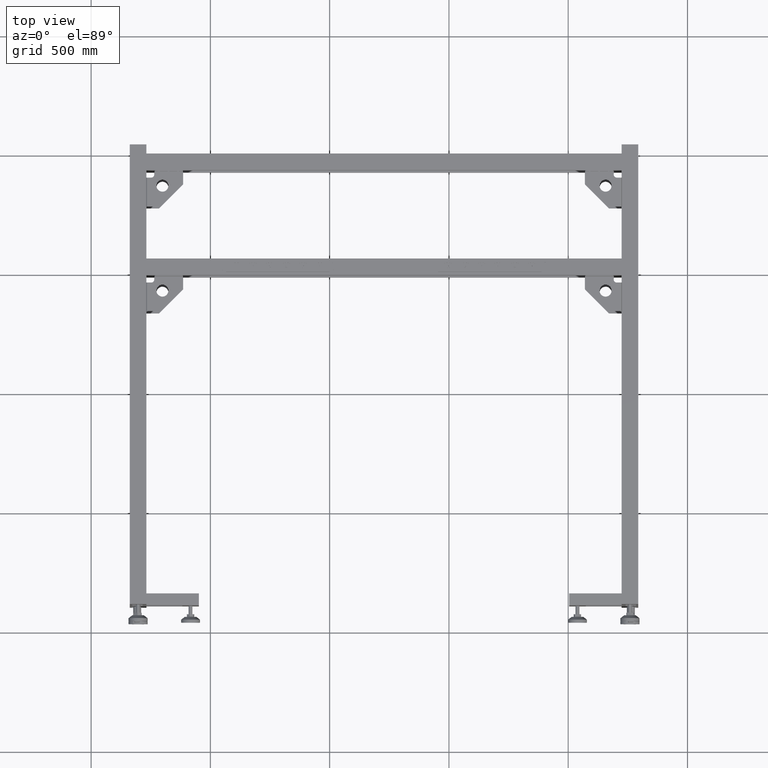
[diagram: clean part render]
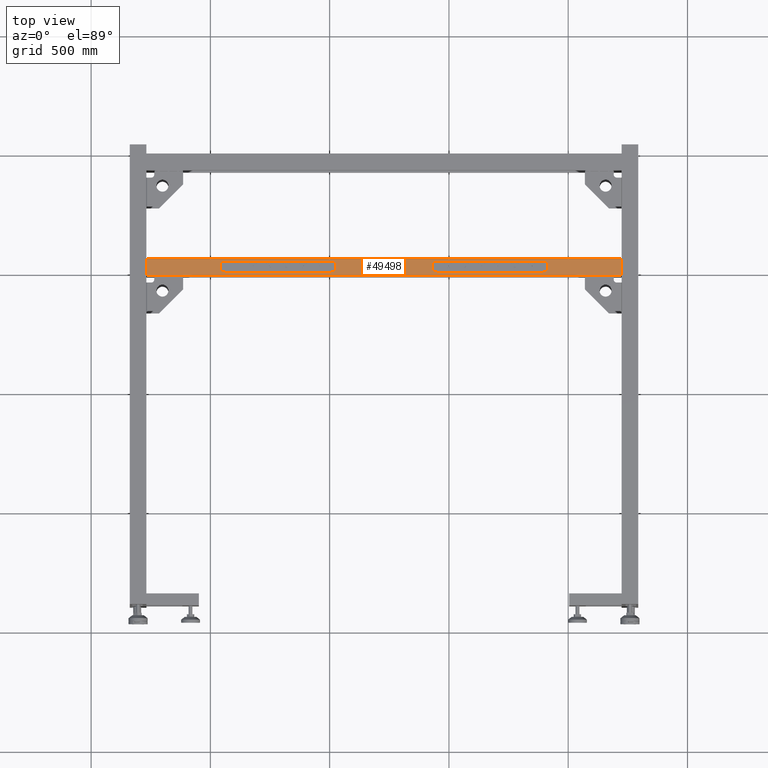
[diagram: same view with one face highlighted and labeled with its STEP entity id]
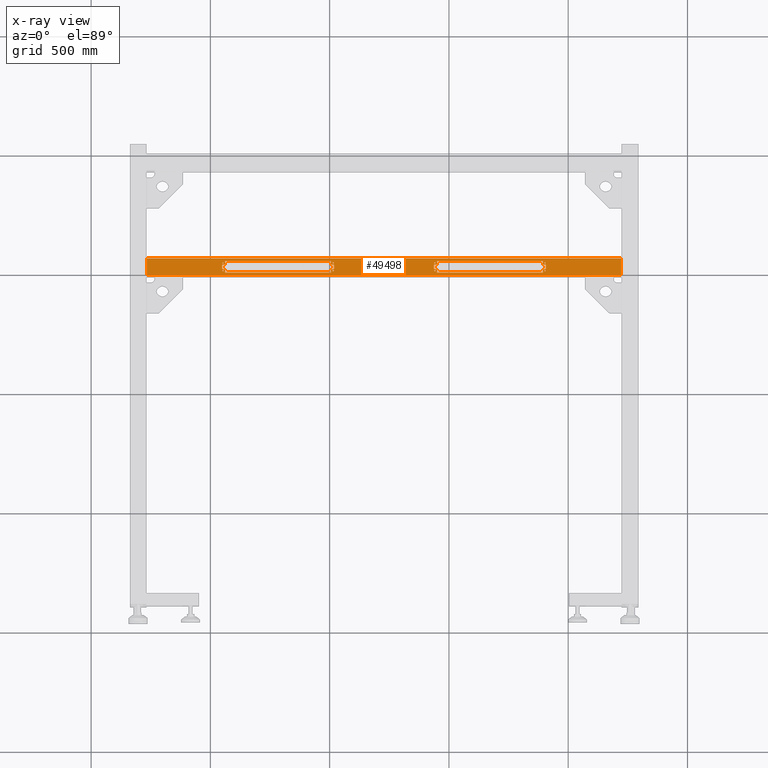
[diagram: x-ray of the same camera — body ghosted, the highlighted face saturated]
A machine part, top view. The second image highlights one B-rep face of the part: STEP entity #49498.
The next image is the same camera in x-ray: the body ghosted, the highlighted face saturated — about 0% of this face is hidden behind the body in this view.
In plain terms, the highlighted planar face has unit normal (0, 0, -1).
Its self-contained STEP definition (entity closure, byte-faithful):
#266 = VERTEX_POINT ( 'NONE', #2231 ) ;
#527 = EDGE_CURVE ( 'NONE', #13669, #47377, #28996, .T. ) ;
#904 = DIRECTION ( 'NONE',  ( 7.960835153364788038E-31, -2.999999999999999839E-15, 1.000000000000000000 ) ) ;
#936 = ORIENTED_EDGE ( 'NONE', *, *, #35112, .F. ) ;
#1329 = ORIENTED_EDGE ( 'NONE', *, *, #56713, .F. ) ;
#1352 = CARTESIAN_POINT ( 'NONE',  ( -486.1724874371860210, 531.9410804020108117, 300.0000000000000568 ) ) ;
#1540 = CARTESIAN_POINT ( 'NONE',  ( 393.8275125628159685, 531.9410804020110390, 300.0000000000000568 ) ) ;
#1552 = CARTESIAN_POINT ( 'NONE',  ( -947.1724874371860778, 505.9410804020108117, 299.9999999999999432 ) ) ;
#1558 = VERTEX_POINT ( 'NONE', #68905 ) ;
#1582 = DIRECTION ( 'NONE',  ( 0.000000000000000000, -2.999999999999999839E-15, 1.000000000000000000 ) ) ;
#2035 = EDGE_LOOP ( 'NONE', ( #28063, #31791 ) ) ;
#2231 = CARTESIAN_POINT ( 'NONE',  ( 406.8275125628160822, 526.9410804020110390, 300.0000000000000568 ) ) ;
#2242 = LINE ( 'NONE', #75510, #21862 ) ;
#2318 = CARTESIAN_POINT ( 'NONE',  ( -485.1724874371860210, 537.9410804020139949, 300.0000000000000568 ) ) ;
#2947 = ORIENTED_EDGE ( 'NONE', *, *, #44410, .F. ) ;
#3583 = VERTEX_POINT ( 'NONE', #6135 ) ;
#4714 = CARTESIAN_POINT ( 'NONE',  ( -63.17248743718406701, 531.9410804020109254, 300.0000000000000568 ) ) ;
#4722 = CARTESIAN_POINT ( 'NONE',  ( 393.8275125628159685, 546.4410804020110390, 300.0000000000000568 ) ) ;
#4749 = DIRECTION ( 'NONE',  ( 0.000000000000000000, -1.000000000000000000, 0.000000000000000000 ) ) ;
#5450 = LINE ( 'NONE', #6254, #21640 ) ;
#5465 = CARTESIAN_POINT ( 'NONE',  ( -59.17248743718401016, 508.5410804020141882, 299.9999999999999432 ) ) ;
#5870 = LINE ( 'NONE', #44710, #31961 ) ;
#5891 = VERTEX_POINT ( 'NONE', #20663 ) ;
#6135 = CARTESIAN_POINT ( 'NONE',  ( -58.17248743718405990, 531.9410804020109254, 300.0000000000000568 ) ) ;
#6254 = CARTESIAN_POINT ( 'NONE',  ( 406.8275125628160822, 531.9410804020110390, 300.0000000000000568 ) ) ;
#6269 = VERTEX_POINT ( 'NONE', #14744 ) ;
#6855 = AXIS2_PLACEMENT_3D ( 'NONE', #19943, #1582, #51506 ) ;
#7041 = ORIENTED_EDGE ( 'NONE', *, *, #58345, .T. ) ;
#7105 = DIRECTION ( 'NONE',  ( 0.000000000000000000, 1.000000000000000000, 0.000000000000000000 ) ) ;
#7136 = CIRCLE ( 'NONE', #48960, 2.600000000000046718 ) ;
#7827 = LINE ( 'NONE', #33215, #65468 ) ;
#8002 = DIRECTION ( 'NONE',  ( 0.000000000000000000, -2.999999999999999839E-15, 1.000000000000000000 ) ) ;
#8058 = CARTESIAN_POINT ( 'NONE',  ( 402.8275125628160822, 537.9410804020110390, 300.0000000000000568 ) ) ;
#8066 = ORIENTED_EDGE ( 'NONE', *, *, #56311, .T. ) ;
#8237 = AXIS2_PLACEMENT_3D ( 'NONE', #1552, #65316, #26890 ) ;
#8436 = DIRECTION ( 'NONE',  ( 0.000000000000000000, -1.000000000000000000, 0.000000000000000000 ) ) ;
#8531 = VERTEX_POINT ( 'NONE', #47474 ) ;
#8585 = ORIENTED_EDGE ( 'NONE', *, *, #11673, .F. ) ;
#8604 = CARTESIAN_POINT ( 'NONE',  ( 401.8275125628159685, 531.9410804020110390, 300.0000000000000568 ) ) ;
#8741 = ORIENTED_EDGE ( 'NONE', *, *, #31428, .T. ) ;
#8773 = EDGE_CURVE ( 'NONE', #43921, #77637, #37607, .T. ) ;
#8837 = ORIENTED_EDGE ( 'NONE', *, *, #68766, .T. ) ;
#9093 = AXIS2_PLACEMENT_3D ( 'NONE', #53300, #46744, #72522 ) ;
#9165 = CIRCLE ( 'NONE', #65355, 2.600000000000046718 ) ;
#9293 = DIRECTION ( 'NONE',  ( 2.653611717788262918E-16, -1.000000000000000000, -3.396508223080412663E-15 ) ) ;
#9388 = DIRECTION ( 'NONE',  ( 0.000000000000000000, 3.396508223080412663E-15, -1.000000000000000000 ) ) ;
#9397 = AXIS2_PLACEMENT_3D ( 'NONE', #45661, #14137, #8436 ) ;
#9704 = EDGE_CURVE ( 'NONE', #61816, #32586, #77782, .T. ) ;
#9726 = ORIENTED_EDGE ( 'NONE', *, *, #64234, .F. ) ;
#9771 = DIRECTION ( 'NONE',  ( 1.000000000000000000, 2.028486140859684007E-16, -1.875376730785736675E-31 ) ) ;
#9788 = FACE_BOUND ( 'NONE', #57471, .T. ) ;
#10097 = DIRECTION ( 'NONE',  ( -7.960835153364788038E-31, 2.999999999999999839E-15, -1.000000000000000000 ) ) ;
#10169 = DIRECTION ( 'NONE',  ( 0.000000000000000000, -1.000000000000000000, 0.000000000000000000 ) ) ;
#10178 = CARTESIAN_POINT ( 'NONE',  ( 1021.827512562814036, 556.9410804020106980, 300.0000000000001137 ) ) ;
#10220 = AXIS2_PLACEMENT_3D ( 'NONE', #64052, #8002, #14114 ) ;
#10324 = VECTOR ( 'NONE', #59338, 1000.000000000000000 ) ;
#11041 = VERTEX_POINT ( 'NONE', #14444 ) ;
#11318 = VECTOR ( 'NONE', #37242, 1000.000000000000000 ) ;
#11489 = ORIENTED_EDGE ( 'NONE', *, *, #71709, .F. ) ;
#11497 = VERTEX_POINT ( 'NONE', #49021 ) ;
#11557 = VERTEX_POINT ( 'NONE', #60883 ) ;
#11673 = EDGE_CURVE ( 'NONE', #61882, #49262, #44892, .T. ) ;
#11893 = DIRECTION ( 'NONE',  ( 0.000000000000000000, 1.000000000000000000, 0.000000000000000000 ) ) ;
#12093 = CIRCLE ( 'NONE', #6855, 2.600000000000046718 ) ;
#12261 = LINE ( 'NONE', #60975, #11318 ) ;
#12378 = CARTESIAN_POINT ( 'NONE',  ( -951.1724874371860778, 511.9410804020108117, 299.9999999999999432 ) ) ;
#12466 = DIRECTION ( 'NONE',  ( -2.653611717788262918E-16, 1.000000000000000000, 2.999999999999999839E-15 ) ) ;
#12804 = VERTEX_POINT ( 'NONE', #71159 ) ;
#13000 = CARTESIAN_POINT ( 'NONE',  ( -946.1724874371859642, 511.9410804020108117, 299.9999999999999432 ) ) ;
#13239 = CARTESIAN_POINT ( 'NONE',  ( 406.8275125628160822, 511.9410804020110390, 299.9999999999999432 ) ) ;
#13435 = VECTOR ( 'NONE', #9771, 1000.000000000000000 ) ;
#13669 = VERTEX_POINT ( 'NONE', #72491 ) ;
#13949 = CARTESIAN_POINT ( 'NONE',  ( -947.1724874371860778, 503.3410804020108458, 299.9999999999999432 ) ) ;
#14071 = ORIENTED_EDGE ( 'NONE', *, *, #69853, .F. ) ;
#14114 = DIRECTION ( 'NONE',  ( 0.000000000000000000, -1.000000000000000000, 0.000000000000000000 ) ) ;
#14137 = DIRECTION ( 'NONE',  ( -7.960835153364788038E-31, 2.999999999999999839E-15, -1.000000000000000000 ) ) ;
#14402 = CARTESIAN_POINT ( 'NONE',  ( -947.1724874371860778, 540.5410804020107207, 300.0000000000000568 ) ) ;
#14444 = CARTESIAN_POINT ( 'NONE',  ( -938.1724874371859642, 531.9410804020108117, 300.0000000000000568 ) ) ;
#14744 = CARTESIAN_POINT ( 'NONE',  ( -946.1724874371859642, 531.9410804020108117, 300.0000000000000568 ) ) ;
#15060 = CARTESIAN_POINT ( 'NONE',  ( -486.1724874371860210, 526.9410804020108117, 300.0000000000000568 ) ) ;
#15335 = CIRCLE ( 'NONE', #10220, 2.600000000000046718 ) ;
#15496 = FACE_BOUND ( 'NONE', #45992, .T. ) ;
#15704 = VERTEX_POINT ( 'NONE', #80070 ) ;
#15810 = CARTESIAN_POINT ( 'NONE',  ( -481.1724874371859642, 516.9410804020108117, 300.0000000000000000 ) ) ;
#15834 = EDGE_LOOP ( 'NONE', ( #28859, #56506 ) ) ;
#15860 = LINE ( 'NONE', #65799, #76940 ) ;
#16214 = CIRCLE ( 'NONE', #8237, 2.600000000000046718 ) ;
#16304 = PLANE ( 'NONE',  #73415 ) ;
#16449 = CARTESIAN_POINT ( 'NONE',  ( -485.1724874371860210, 505.9410804020138812, 299.9999999999999432 ) ) ;
#16486 = AXIS2_PLACEMENT_3D ( 'NONE', #15060, #64997, #22416 ) ;
#16627 = VERTEX_POINT ( 'NONE', #8604 ) ;
#16676 = DIRECTION ( 'NONE',  ( 0.000000000000000000, -2.999999999999999839E-15, 1.000000000000000000 ) ) ;
#16729 = DIRECTION ( 'NONE',  ( 0.000000000000000000, -2.999999999999999839E-15, 1.000000000000000000 ) ) ;
#16802 = EDGE_CURVE ( 'NONE', #66692, #19691, #60534, .T. ) ;
#17080 = CARTESIAN_POINT ( 'NONE',  ( -485.1724874371860210, 505.9410804020138812, 299.9999999999999432 ) ) ;
#17530 = DIRECTION ( 'NONE',  ( -2.653611717788262918E-16, 1.000000000000000000, 3.957088814332028864E-15 ) ) ;
#18006 = DIRECTION ( 'NONE',  ( 0.000000000000000000, 2.999999999999999839E-15, -1.000000000000000000 ) ) ;
#18016 = EDGE_CURVE ( 'NONE', #50449, #76430, #28729, .T. ) ;
#18072 = CARTESIAN_POINT ( 'NONE',  ( 402.8275125628160822, 535.3410804020110163, 300.0000000000000568 ) ) ;
#18129 = EDGE_CURVE ( 'NONE', #11041, #6269, #56127, .T. ) ;
#18560 = AXIS2_PLACEMENT_3D ( 'NONE', #38593, #20930, #40181 ) ;
#18576 = LINE ( 'NONE', #4714, #50812 ) ;
#18747 = VECTOR ( 'NONE', #76930, 1000.000000000000000 ) ;
#19493 = EDGE_CURVE ( 'NONE', #19691, #47377, #51635, .T. ) ;
#19537 = EDGE_CURVE ( 'NONE', #3583, #35132, #43331, .T. ) ;
#19691 = VERTEX_POINT ( 'NONE', #30657 ) ;
#19943 = CARTESIAN_POINT ( 'NONE',  ( -947.1724874371860778, 537.9410804020108117, 300.0000000000000568 ) ) ;
#20663 = CARTESIAN_POINT ( 'NONE',  ( -485.1724874371860210, 535.3410804020138585, 300.0000000000000568 ) ) ;
#20838 = ORIENTED_EDGE ( 'NONE', *, *, #55433, .T. ) ;
#20930 = DIRECTION ( 'NONE',  ( -7.960835153364788038E-31, 2.999999999999999839E-15, -1.000000000000000000 ) ) ;
#21103 = DIRECTION ( 'NONE',  ( 0.000000000000000000, -2.999999999999999839E-15, 1.000000000000000000 ) ) ;
#21232 = FACE_BOUND ( 'NONE', #2035, .T. ) ;
#21233 = EDGE_LOOP ( 'NONE', ( #67341, #2947 ) ) ;
#21298 = EDGE_CURVE ( 'NONE', #72736, #15704, #40755, .T. ) ;
#21627 = EDGE_CURVE ( 'NONE', #32586, #11041, #7827, .T. ) ;
#21640 = VECTOR ( 'NONE', #42669, 1000.000000000000000 ) ;
#21806 = CIRCLE ( 'NONE', #36261, 2.600000000000046718 ) ;
#21862 = VECTOR ( 'NONE', #75915, 1000.000000000000000 ) ;
#22063 = DIRECTION ( 'NONE',  ( 0.000000000000000000, 2.999999999999999839E-15, -1.000000000000000000 ) ) ;
#22085 = CARTESIAN_POINT ( 'NONE',  ( -58.17248743718400306, 516.9410804020109254, 300.0000000000000000 ) ) ;
#22172 = CIRCLE ( 'NONE', #67932, 5.000000000000004441 ) ;
#22416 = DIRECTION ( 'NONE',  ( 0.000000000000000000, 1.000000000000000000, 0.000000000000000000 ) ) ;
#22566 = CARTESIAN_POINT ( 'NONE',  ( -494.1724874371860210, 511.9410804020108117, 299.9999999999999432 ) ) ;
#23614 = ORIENTED_EDGE ( 'NONE', *, *, #527, .F. ) ;
#23719 = ORIENTED_EDGE ( 'NONE', *, *, #28034, .F. ) ;
#23731 = CARTESIAN_POINT ( 'NONE',  ( 393.8275125628159685, 511.9410804020110390, 299.9999999999999432 ) ) ;
#23784 = VERTEX_POINT ( 'NONE', #66427 ) ;
#23907 = CARTESIAN_POINT ( 'NONE',  ( 393.8275125628159685, 497.4410804020109822, 299.9999999999999432 ) ) ;
#24046 = CARTESIAN_POINT ( 'NONE',  ( -951.1724874371860778, 516.9410804020108117, 300.0000000000000000 ) ) ;
#24051 = EDGE_CURVE ( 'NONE', #11557, #50115, #39496, .T. ) ;
#24388 = CARTESIAN_POINT ( 'NONE',  ( -481.1724874371859642, 526.9410804020108117, 300.0000000000000568 ) ) ;
#24463 = ORIENTED_EDGE ( 'NONE', *, *, #19537, .F. ) ;
#24587 = CARTESIAN_POINT ( 'NONE',  ( -951.1724874371860778, 531.9410804020108117, 300.0000000000000568 ) ) ;
#24880 = DIRECTION ( 'NONE',  ( 0.000000000000000000, 1.000000000000000000, 0.000000000000000000 ) ) ;
#24971 = CARTESIAN_POINT ( 'NONE',  ( -1266.172487437185964, 486.9410804020108117, 299.9999999999998863 ) ) ;
#25017 = EDGE_CURVE ( 'NONE', #266, #16627, #22172, .T. ) ;
#25153 = ORIENTED_EDGE ( 'NONE', *, *, #59700, .F. ) ;
#25236 = CIRCLE ( 'NONE', #59169, 2.600000000000046718 ) ;
#25254 = CARTESIAN_POINT ( 'NONE',  ( 1021.827512562814036, 486.9410804020108117, 299.9999999999998863 ) ) ;
#25367 = CIRCLE ( 'NONE', #58018, 5.000000000000004441 ) ;
#26184 = VERTEX_POINT ( 'NONE', #41907 ) ;
#26321 = VECTOR ( 'NONE', #17530, 1000.000000000000000 ) ;
#26377 = CARTESIAN_POINT ( 'NONE',  ( -58.17248743718400306, 511.9410804020109254, 299.9999999999999432 ) ) ;
#26522 = ORIENTED_EDGE ( 'NONE', *, *, #21627, .F. ) ;
#26890 = DIRECTION ( 'NONE',  ( 0.000000000000000000, -1.000000000000000000, 0.000000000000000000 ) ) ;
#26947 = EDGE_CURVE ( 'NONE', #27664, #28734, #67077, .T. ) ;
#27042 = CARTESIAN_POINT ( 'NONE',  ( -58.17248743718405990, 526.9410804020109254, 300.0000000000000568 ) ) ;
#27265 = DIRECTION ( 'NONE',  ( -7.960835153364788038E-31, 2.999999999999999839E-15, -1.000000000000000000 ) ) ;
#27664 = VERTEX_POINT ( 'NONE', #31633 ) ;
#27834 = DIRECTION ( 'NONE',  ( 7.960835153364788038E-31, -2.999999999999999839E-15, 1.000000000000000000 ) ) ;
#27963 = DIRECTION ( 'NONE',  ( 0.000000000000000000, -2.999999999999999839E-15, 1.000000000000000000 ) ) ;
#28034 = EDGE_CURVE ( 'NONE', #37994, #45620, #56895, .T. ) ;
#28063 = ORIENTED_EDGE ( 'NONE', *, *, #40860, .F. ) ;
#28342 = EDGE_CURVE ( 'NONE', #40370, #6269, #25367, .T. ) ;
#28574 = CARTESIAN_POINT ( 'NONE',  ( -951.1724874371860778, 531.9410804020108117, 300.0000000000000568 ) ) ;
#28586 = ORIENTED_EDGE ( 'NONE', *, *, #38141, .F. ) ;
#28691 = VERTEX_POINT ( 'NONE', #78415 ) ;
#28729 = CIRCLE ( 'NONE', #9093, 2.600000000000046718 ) ;
#28734 = VERTEX_POINT ( 'NONE', #53860 ) ;
#28859 = ORIENTED_EDGE ( 'NONE', *, *, #38121, .T. ) ;
#28996 = CIRCLE ( 'NONE', #51200, 5.000000000000004441 ) ;
#29015 = EDGE_CURVE ( 'NONE', #66315, #66692, #64412, .T. ) ;
#29025 = FACE_BOUND ( 'NONE', #30948, .T. ) ;
#29352 = ORIENTED_EDGE ( 'NONE', *, *, #19493, .T. ) ;
#30657 = CARTESIAN_POINT ( 'NONE',  ( -50.17248743718399595, 511.9410804020109254, 299.9999999999999432 ) ) ;
#30898 = EDGE_CURVE ( 'NONE', #69935, #43921, #76130, .T. ) ;
#30948 = EDGE_LOOP ( 'NONE', ( #74608, #38637 ) ) ;
#31264 = CARTESIAN_POINT ( 'NONE',  ( 402.8275125628160822, 503.3410804020110731, 299.9999999999999432 ) ) ;
#31428 = EDGE_CURVE ( 'NONE', #8531, #36891, #5870, .T. ) ;
#31536 = VERTEX_POINT ( 'NONE', #1352 ) ;
#31633 = CARTESIAN_POINT ( 'NONE',  ( 721.8275125628159685, 556.9410804020110390, 300.0000000000001137 ) ) ;
#31791 = ORIENTED_EDGE ( 'NONE', *, *, #67462, .F. ) ;
#31846 = CARTESIAN_POINT ( 'NONE',  ( -946.1724874371859642, 526.9410804020108117, 300.0000000000000568 ) ) ;
#31917 = EDGE_CURVE ( 'NONE', #57789, #47853, #67075, .T. ) ;
#31961 = VECTOR ( 'NONE', #38178, 1000.000000000000000 ) ;
#32105 = LINE ( 'NONE', #13239, #38456 ) ;
#32241 = CARTESIAN_POINT ( 'NONE',  ( -485.1724874371860210, 508.5410804020140745, 299.9999999999999432 ) ) ;
#32298 = ORIENTED_EDGE ( 'NONE', *, *, #79654, .T. ) ;
#32540 = DIRECTION ( 'NONE',  ( -1.000000000000000000, -2.028486140859684007E-16, 1.875376730785736675E-31 ) ) ;
#32586 = VERTEX_POINT ( 'NONE', #73802 ) ;
#33215 = CARTESIAN_POINT ( 'NONE',  ( -938.1724874371859642, 546.4410804020108117, 300.0000000000000568 ) ) ;
#33557 = EDGE_CURVE ( 'NONE', #12804, #60086, #12093, .T. ) ;
#33591 = DIRECTION ( 'NONE',  ( 0.000000000000000000, 1.000000000000000000, 0.000000000000000000 ) ) ;
#33604 = DIRECTION ( 'NONE',  ( -1.000000000000000000, -6.251255769285789110E-17, -1.875376730785736675E-31 ) ) ;
#34016 = EDGE_CURVE ( 'NONE', #50115, #11557, #25236, .T. ) ;
#34762 = CIRCLE ( 'NONE', #66098, 2.600000000000046718 ) ;
#34763 = FACE_BOUND ( 'NONE', #21233, .T. ) ;
#35070 = LINE ( 'NONE', #65347, #64812 ) ;
#35112 = EDGE_CURVE ( 'NONE', #76430, #50449, #16214, .T. ) ;
#35132 = VERTEX_POINT ( 'NONE', #57991 ) ;
#35134 = LINE ( 'NONE', #71556, #13435 ) ;
#35903 = LINE ( 'NONE', #66561, #67813 ) ;
#36053 = CIRCLE ( 'NONE', #71296, 5.000000000000004441 ) ;
#36261 = AXIS2_PLACEMENT_3D ( 'NONE', #59995, #78016, #4749 ) ;
#36490 = VERTEX_POINT ( 'NONE', #77330 ) ;
#36891 = VERTEX_POINT ( 'NONE', #42298 ) ;
#37242 = DIRECTION ( 'NONE',  ( 0.000000000000000000, -1.000000000000000000, -3.396508223080412663E-15 ) ) ;
#37607 = LINE ( 'NONE', #69506, #48105 ) ;
#37698 = EDGE_CURVE ( 'NONE', #37994, #73474, #36053, .T. ) ;
#37779 = VECTOR ( 'NONE', #33604, 1000.000000000000000 ) ;
#37814 = DIRECTION ( 'NONE',  ( -1.000000000000000000, 1.414618770556693465E-14, 4.323464663203728341E-29 ) ) ;
#37994 = VERTEX_POINT ( 'NONE', #15810 ) ;
#38121 = EDGE_CURVE ( 'NONE', #15704, #72736, #34762, .T. ) ;
#38141 = EDGE_CURVE ( 'NONE', #27664, #61882, #35070, .T. ) ;
#38178 = DIRECTION ( 'NONE',  ( -2.653611717788262918E-16, 1.000000000000000000, 3.957088814332035175E-15 ) ) ;
#38289 = ORIENTED_EDGE ( 'NONE', *, *, #54278, .T. ) ;
#38456 = VECTOR ( 'NONE', #37814, 1000.000000000000000 ) ;
#38593 = CARTESIAN_POINT ( 'NONE',  ( -59.17248743718405990, 537.9410804020139949, 300.0000000000000568 ) ) ;
#38637 = ORIENTED_EDGE ( 'NONE', *, *, #42678, .T. ) ;
#38638 = DIRECTION ( 'NONE',  ( 0.000000000000000000, -1.000000000000000000, 0.000000000000000000 ) ) ;
#39009 = VERTEX_POINT ( 'NONE', #31264 ) ;
#39024 = CARTESIAN_POINT ( 'NONE',  ( 402.8275125628160822, 537.9410804020110390, 300.0000000000000568 ) ) ;
#39317 = CARTESIAN_POINT ( 'NONE',  ( -50.17248743718399595, 511.9410804020109254, 299.9999999999999432 ) ) ;
#39423 = VECTOR ( 'NONE', #64276, 1000.000000000000000 ) ;
#39496 = CIRCLE ( 'NONE', #18560, 2.600000000000046718 ) ;
#39551 = DIRECTION ( 'NONE',  ( 0.000000000000000000, -1.000000000000000000, 0.000000000000000000 ) ) ;
#39840 = DIRECTION ( 'NONE',  ( -7.960835153364788038E-31, 2.999999999999999839E-15, -1.000000000000000000 ) ) ;
#39966 = DIRECTION ( 'NONE',  ( 0.000000000000000000, -1.000000000000000000, 0.000000000000000000 ) ) ;
#40181 = DIRECTION ( 'NONE',  ( 0.000000000000000000, -1.000000000000000000, 0.000000000000000000 ) ) ;
#40348 = CARTESIAN_POINT ( 'NONE',  ( -494.1724874371860210, 531.9410804020108117, 300.0000000000000568 ) ) ;
#40370 = VERTEX_POINT ( 'NONE', #48364 ) ;
#40755 = CIRCLE ( 'NONE', #9397, 2.600000000000046718 ) ;
#40860 = EDGE_CURVE ( 'NONE', #5891, #1558, #49343, .T. ) ;
#40874 = ORIENTED_EDGE ( 'NONE', *, *, #30898, .F. ) ;
#40902 = DIRECTION ( 'NONE',  ( 0.000000000000000000, 1.000000000000000000, 0.000000000000000000 ) ) ;
#41108 = ORIENTED_EDGE ( 'NONE', *, *, #60102, .F. ) ;
#41227 = AXIS2_PLACEMENT_3D ( 'NONE', #39024, #39840, #38638 ) ;
#41616 = AXIS2_PLACEMENT_3D ( 'NONE', #80979, #57205, #24880 ) ;
#41720 = DIRECTION ( 'NONE',  ( 0.000000000000000000, -1.000000000000000000, 0.000000000000000000 ) ) ;
#41904 = DIRECTION ( 'NONE',  ( 0.000000000000000000, -1.000000000000000000, 0.000000000000000000 ) ) ;
#41907 = CARTESIAN_POINT ( 'NONE',  ( 406.8275125628160822, 516.9410804020110390, 300.0000000000000000 ) ) ;
#42134 = EDGE_LOOP ( 'NONE', ( #59993, #26522, #58802, #79826, #1329, #8066, #23719, #63363, #69006, #41108, #60503, #40874, #14071, #62080, #71306, #53580 ) ) ;
#42215 = DIRECTION ( 'NONE',  ( -1.000000000000000000, -0.000000000000000000, 0.000000000000000000 ) ) ;
#42298 = CARTESIAN_POINT ( 'NONE',  ( -50.17248743718405279, 546.4410804020109254, 300.0000000000000568 ) ) ;
#42669 = DIRECTION ( 'NONE',  ( 1.000000000000000000, 2.653611717788262918E-16, 0.000000000000000000 ) ) ;
#42678 = EDGE_CURVE ( 'NONE', #73638, #39009, #60218, .T. ) ;
#42758 = EDGE_LOOP ( 'NONE', ( #70031, #8585, #28586, #64389 ) ) ;
#42931 = CARTESIAN_POINT ( 'NONE',  ( -494.1724874371860210, 546.4410804020108117, 300.0000000000000568 ) ) ;
#43331 = CIRCLE ( 'NONE', #76061, 5.000000000000004441 ) ;
#43474 = LINE ( 'NONE', #12378, #69619 ) ;
#43487 = ORIENTED_EDGE ( 'NONE', *, *, #46893, .T. ) ;
#43632 = VECTOR ( 'NONE', #56487, 1000.000000000000000 ) ;
#43686 = DIRECTION ( 'NONE',  ( 0.000000000000000000, 2.999999999999999839E-15, -1.000000000000000000 ) ) ;
#43921 = VERTEX_POINT ( 'NONE', #75642 ) ;
#44410 = EDGE_CURVE ( 'NONE', #60086, #12804, #15335, .T. ) ;
#44710 = CARTESIAN_POINT ( 'NONE',  ( -50.17248743718405279, 546.4410804020109254, 300.0000000000000568 ) ) ;
#44892 = LINE ( 'NONE', #25254, #61090 ) ;
#45440 = EDGE_CURVE ( 'NONE', #23784, #73474, #35903, .T. ) ;
#45620 = VERTEX_POINT ( 'NONE', #24388 ) ;
#45661 = CARTESIAN_POINT ( 'NONE',  ( -59.17248743718401016, 505.9410804020139949, 299.9999999999999432 ) ) ;
#45992 = EDGE_LOOP ( 'NONE', ( #9726, #11489 ) ) ;
#46623 = FACE_BOUND ( 'NONE', #53389, .T. ) ;
#46744 = DIRECTION ( 'NONE',  ( 0.000000000000000000, -2.999999999999999839E-15, 1.000000000000000000 ) ) ;
#46893 = EDGE_CURVE ( 'NONE', #76827, #28691, #9165, .T. ) ;
#47034 = FACE_BOUND ( 'NONE', #56038, .T. ) ;
#47069 = CARTESIAN_POINT ( 'NONE',  ( -485.1724874371860210, 537.9410804020139949, 300.0000000000000568 ) ) ;
#47377 = VERTEX_POINT ( 'NONE', #26377 ) ;
#47474 = CARTESIAN_POINT ( 'NONE',  ( -50.17248743718405279, 531.9410804020109254, 300.0000000000000568 ) ) ;
#47649 = ORIENTED_EDGE ( 'NONE', *, *, #53018, .T. ) ;
#47853 = VERTEX_POINT ( 'NONE', #24046 ) ;
#48105 = VECTOR ( 'NONE', #57229, 1000.000000000000000 ) ;
#48241 = CARTESIAN_POINT ( 'NONE',  ( -486.1724874371860210, 516.9410804020108117, 300.0000000000000000 ) ) ;
#48364 = CARTESIAN_POINT ( 'NONE',  ( -951.1724874371860778, 526.9410804020108117, 300.0000000000000568 ) ) ;
#48722 = DIRECTION ( 'NONE',  ( 1.175042694376306775E-14, -1.000000000000000000, -3.957088814332020186E-15 ) ) ;
#48867 = CARTESIAN_POINT ( 'NONE',  ( 402.8275125628160822, 505.9410804020110390, 299.9999999999999432 ) ) ;
#48960 = AXIS2_PLACEMENT_3D ( 'NONE', #17080, #16676, #10169 ) ;
#48964 = CARTESIAN_POINT ( 'NONE',  ( -486.1724874371860210, 511.9410804020108117, 299.9999999999999432 ) ) ;
#49021 = CARTESIAN_POINT ( 'NONE',  ( 401.8275125628159685, 511.9410804020110390, 299.9999999999999432 ) ) ;
#49262 = VERTEX_POINT ( 'NONE', #24971 ) ;
#49343 = CIRCLE ( 'NONE', #62430, 2.600000000000046718 ) ;
#49498 = ADVANCED_FACE ( 'NONE', ( #77736, #9788, #47034, #46623, #77327, #29025, #66225, #34763, #21232, #15496, #65434 ), #16304, .F. ) ;
#49665 = DIRECTION ( 'NONE',  ( 7.960835153364788038E-31, -2.999999999999999839E-15, 1.000000000000000000 ) ) ;
#50115 = VERTEX_POINT ( 'NONE', #55245 ) ;
#50449 = VERTEX_POINT ( 'NONE', #13949 ) ;
#50812 = VECTOR ( 'NONE', #12466, 1000.000000000000000 ) ;
#50814 = DIRECTION ( 'NONE',  ( 0.000000000000000000, 1.000000000000000000, 0.000000000000000000 ) ) ;
#50884 = LINE ( 'NONE', #22566, #61316 ) ;
#51089 = AXIS2_PLACEMENT_3D ( 'NONE', #48867, #67264, #54194 ) ;
#51200 = AXIS2_PLACEMENT_3D ( 'NONE', #22085, #27834, #33591 ) ;
#51484 = VERTEX_POINT ( 'NONE', #4722 ) ;
#51506 = DIRECTION ( 'NONE',  ( 0.000000000000000000, -1.000000000000000000, 0.000000000000000000 ) ) ;
#51635 = LINE ( 'NONE', #39317, #39423 ) ;
#51639 = DIRECTION ( 'NONE',  ( 3.828355257328120833E-15, -1.000000000000000000, -3.957088814332029653E-15 ) ) ;
#51824 = CIRCLE ( 'NONE', #16486, 5.000000000000004441 ) ;
#52687 = DIRECTION ( 'NONE',  ( 0.000000000000000000, -1.000000000000000000, 0.000000000000000000 ) ) ;
#53008 = DIRECTION ( 'NONE',  ( -7.960835153364788038E-31, 2.999999999999999839E-15, -1.000000000000000000 ) ) ;
#53018 = EDGE_CURVE ( 'NONE', #70804, #16627, #5450, .T. ) ;
#53223 = CARTESIAN_POINT ( 'NONE',  ( -938.1724874371859642, 546.4410804020108117, 300.0000000000000568 ) ) ;
#53300 = CARTESIAN_POINT ( 'NONE',  ( -947.1724874371860778, 505.9410804020108117, 299.9999999999999432 ) ) ;
#53389 = EDGE_LOOP ( 'NONE', ( #77608, #80034 ) ) ;
#53580 = ORIENTED_EDGE ( 'NONE', *, *, #28342, .T. ) ;
#53860 = CARTESIAN_POINT ( 'NONE',  ( -1266.172487437185964, 556.9410804020106980, 300.0000000000001137 ) ) ;
#53981 = DIRECTION ( 'NONE',  ( 0.000000000000000000, -1.000000000000000000, -3.396508223080412663E-15 ) ) ;
#54001 = CARTESIAN_POINT ( 'NONE',  ( -50.17248743718399595, 511.9410804020109254, 299.9999999999999432 ) ) ;
#54194 = DIRECTION ( 'NONE',  ( 0.000000000000000000, -1.000000000000000000, 0.000000000000000000 ) ) ;
#54215 = VECTOR ( 'NONE', #32540, 1000.000000000000000 ) ;
#54278 = EDGE_CURVE ( 'NONE', #11497, #36490, #32105, .T. ) ;
#54339 = CARTESIAN_POINT ( 'NONE',  ( -947.1724874371860778, 508.5410804020107207, 299.9999999999999432 ) ) ;
#54738 = ORIENTED_EDGE ( 'NONE', *, *, #80832, .T. ) ;
#54862 = LINE ( 'NONE', #23731, #78483 ) ;
#54963 = ORIENTED_EDGE ( 'NONE', *, *, #29015, .T. ) ;
#55245 = CARTESIAN_POINT ( 'NONE',  ( -59.17248743718405990, 535.3410804020139722, 300.0000000000000568 ) ) ;
#55287 = AXIS2_PLACEMENT_3D ( 'NONE', #68764, #18006, #11893 ) ;
#55433 = EDGE_CURVE ( 'NONE', #28691, #76827, #76529, .T. ) ;
#55779 = VECTOR ( 'NONE', #59164, 1000.000000000000000 ) ;
#56038 = EDGE_LOOP ( 'NONE', ( #43487, #20838 ) ) ;
#56041 = EDGE_CURVE ( 'NONE', #28734, #49262, #12261, .T. ) ;
#56073 = CARTESIAN_POINT ( 'NONE',  ( -481.1724874371859642, 531.9410804020108117, 300.0000000000000568 ) ) ;
#56127 = LINE ( 'NONE', #24587, #70474 ) ;
#56311 = EDGE_CURVE ( 'NONE', #31536, #45620, #51824, .T. ) ;
#56487 = DIRECTION ( 'NONE',  ( 0.000000000000000000, 1.000000000000000000, 2.999999999999999839E-15 ) ) ;
#56506 = ORIENTED_EDGE ( 'NONE', *, *, #21298, .T. ) ;
#56713 = EDGE_CURVE ( 'NONE', #31536, #58456, #77187, .T. ) ;
#56895 = LINE ( 'NONE', #56073, #43632 ) ;
#57205 = DIRECTION ( 'NONE',  ( 7.960835153364788038E-31, -2.999999999999999839E-15, 1.000000000000000000 ) ) ;
#57229 = DIRECTION ( 'NONE',  ( 1.000000000000000000, 6.251255769285789110E-17, 1.875376730785736675E-31 ) ) ;
#57471 = EDGE_LOOP ( 'NONE', ( #47649, #79241, #71741, #25153, #38289, #32298, #54963, #60159, #29352, #23614, #59410, #24463, #7041, #8741, #8837, #54738 ) ) ;
#57770 = CARTESIAN_POINT ( 'NONE',  ( -938.1724874371859642, 511.9410804020108117, 299.9999999999999432 ) ) ;
#57789 = VERTEX_POINT ( 'NONE', #13000 ) ;
#57948 = CIRCLE ( 'NONE', #59224, 2.600000000000046718 ) ;
#57971 = DIRECTION ( 'NONE',  ( -1.000000000000000000, -0.000000000000000000, 0.000000000000000000 ) ) ;
#57991 = CARTESIAN_POINT ( 'NONE',  ( -63.17248743718406701, 526.9410804020109254, 300.0000000000000568 ) ) ;
#58018 = AXIS2_PLACEMENT_3D ( 'NONE', #31846, #43686, #73977 ) ;
#58057 = EDGE_CURVE ( 'NONE', #39009, #73638, #21806, .T. ) ;
#58345 = EDGE_CURVE ( 'NONE', #3583, #8531, #2242, .T. ) ;
#58456 = VERTEX_POINT ( 'NONE', #71366 ) ;
#58802 = ORIENTED_EDGE ( 'NONE', *, *, #9704, .F. ) ;
#59164 = DIRECTION ( 'NONE',  ( -1.000000000000000000, -0.000000000000000000, 0.000000000000000000 ) ) ;
#59169 = AXIS2_PLACEMENT_3D ( 'NONE', #65244, #53008, #41904 ) ;
#59224 = AXIS2_PLACEMENT_3D ( 'NONE', #16449, #27963, #60251 ) ;
#59264 = DIRECTION ( 'NONE',  ( -8.061311512909844162E-15, -1.000000000000000000, -2.999999999999999839E-15 ) ) ;
#59338 = DIRECTION ( 'NONE',  ( -1.000000000000000000, -0.000000000000000000, 0.000000000000000000 ) ) ;
#59410 = ORIENTED_EDGE ( 'NONE', *, *, #77813, .T. ) ;
#59700 = EDGE_CURVE ( 'NONE', #11497, #26184, #76918, .T. ) ;
#59993 = ORIENTED_EDGE ( 'NONE', *, *, #18129, .F. ) ;
#59995 = CARTESIAN_POINT ( 'NONE',  ( 402.8275125628160822, 505.9410804020110390, 299.9999999999999432 ) ) ;
#60086 = VERTEX_POINT ( 'NONE', #14402 ) ;
#60102 = EDGE_CURVE ( 'NONE', #77637, #23784, #50884, .T. ) ;
#60159 = ORIENTED_EDGE ( 'NONE', *, *, #16802, .T. ) ;
#60218 = CIRCLE ( 'NONE', #51089, 2.600000000000046718 ) ;
#60251 = DIRECTION ( 'NONE',  ( 0.000000000000000000, -1.000000000000000000, 0.000000000000000000 ) ) ;
#60503 = ORIENTED_EDGE ( 'NONE', *, *, #8773, .F. ) ;
#60534 = LINE ( 'NONE', #54001, #26321 ) ;
#60883 = CARTESIAN_POINT ( 'NONE',  ( -59.17248743718405990, 540.5410804020142450, 300.0000000000000568 ) ) ;
#60975 = CARTESIAN_POINT ( 'NONE',  ( -1266.172487437185964, 556.9410804020106980, 300.0000000000001137 ) ) ;
#61090 = VECTOR ( 'NONE', #57971, 1000.000000000000000 ) ;
#61316 = VECTOR ( 'NONE', #66749, 1000.000000000000000 ) ;
#61816 = VERTEX_POINT ( 'NONE', #42931 ) ;
#61882 = VERTEX_POINT ( 'NONE', #80192 ) ;
#62080 = ORIENTED_EDGE ( 'NONE', *, *, #31917, .T. ) ;
#62430 = AXIS2_PLACEMENT_3D ( 'NONE', #47069, #16729, #41720 ) ;
#63017 = VECTOR ( 'NONE', #72967, 1000.000000000000000 ) ;
#63363 = ORIENTED_EDGE ( 'NONE', *, *, #37698, .T. ) ;
#63904 = DIRECTION ( 'NONE',  ( 1.000000000000000000, 1.441154887734576138E-14, 4.323464663203728341E-29 ) ) ;
#63976 = CARTESIAN_POINT ( 'NONE',  ( -485.1724874371860210, 503.3410804020139722, 299.9999999999999432 ) ) ;
#63987 = CARTESIAN_POINT ( 'NONE',  ( -50.17248743718399595, 497.4410804020108685, 299.9999999999999432 ) ) ;
#64052 = CARTESIAN_POINT ( 'NONE',  ( -947.1724874371860778, 537.9410804020108117, 300.0000000000000568 ) ) ;
#64195 = AXIS2_PLACEMENT_3D ( 'NONE', #2318, #21103, #39551 ) ;
#64222 = VECTOR ( 'NONE', #66515, 1000.000000000000000 ) ;
#64234 = EDGE_CURVE ( 'NONE', #69297, #68971, #57948, .T. ) ;
#64276 = DIRECTION ( 'NONE',  ( -1.000000000000000000, 2.683998977524987481E-16, 1.601283208593974939E-30 ) ) ;
#64389 = ORIENTED_EDGE ( 'NONE', *, *, #26947, .T. ) ;
#64412 = LINE ( 'NONE', #69756, #54215 ) ;
#64812 = VECTOR ( 'NONE', #9293, 1000.000000000000000 ) ;
#64974 = EDGE_CURVE ( 'NONE', #266, #26184, #15860, .T. ) ;
#64997 = DIRECTION ( 'NONE',  ( 0.000000000000000000, 2.999999999999999839E-15, -1.000000000000000000 ) ) ;
#65055 = EDGE_CURVE ( 'NONE', #40370, #47853, #71144, .T. ) ;
#65244 = CARTESIAN_POINT ( 'NONE',  ( -59.17248743718405990, 537.9410804020139949, 300.0000000000000568 ) ) ;
#65316 = DIRECTION ( 'NONE',  ( 0.000000000000000000, -2.999999999999999839E-15, 1.000000000000000000 ) ) ;
#65347 = CARTESIAN_POINT ( 'NONE',  ( 721.8275125628159685, 556.9410804020110390, 300.0000000000001137 ) ) ;
#65355 = AXIS2_PLACEMENT_3D ( 'NONE', #8058, #27265, #39966 ) ;
#65434 = FACE_BOUND ( 'NONE', #71783, .T. ) ;
#65468 = VECTOR ( 'NONE', #51639, 1000.000000000000000 ) ;
#65799 = CARTESIAN_POINT ( 'NONE',  ( 406.8275125628160822, 531.9410804020110390, 300.0000000000000568 ) ) ;
#66098 = AXIS2_PLACEMENT_3D ( 'NONE', #66145, #10097, #52687 ) ;
#66145 = CARTESIAN_POINT ( 'NONE',  ( -59.17248743718401016, 505.9410804020139949, 299.9999999999999432 ) ) ;
#66225 = FACE_BOUND ( 'NONE', #42134, .T. ) ;
#66315 = VERTEX_POINT ( 'NONE', #23907 ) ;
#66427 = CARTESIAN_POINT ( 'NONE',  ( -494.1724874371860210, 511.9410804020108117, 299.9999999999999432 ) ) ;
#66515 = DIRECTION ( 'NONE',  ( 0.000000000000000000, 1.000000000000000000, 3.957088814332035175E-15 ) ) ;
#66561 = CARTESIAN_POINT ( 'NONE',  ( -494.1724874371860210, 511.9410804020108117, 299.9999999999999432 ) ) ;
#66692 = VERTEX_POINT ( 'NONE', #63987 ) ;
#66749 = DIRECTION ( 'NONE',  ( 0.000000000000000000, 1.000000000000000000, 3.957088814332028864E-15 ) ) ;
#67075 = CIRCLE ( 'NONE', #55287, 5.000000000000004441 ) ;
#67077 = LINE ( 'NONE', #78986, #10324 ) ;
#67264 = DIRECTION ( 'NONE',  ( -7.960835153364788038E-31, 2.999999999999999839E-15, -1.000000000000000000 ) ) ;
#67341 = ORIENTED_EDGE ( 'NONE', *, *, #33557, .F. ) ;
#67462 = EDGE_CURVE ( 'NONE', #1558, #5891, #77290, .T. ) ;
#67813 = VECTOR ( 'NONE', #72312, 1000.000000000000000 ) ;
#67932 = AXIS2_PLACEMENT_3D ( 'NONE', #74205, #49665, #7105 ) ;
#68764 = CARTESIAN_POINT ( 'NONE',  ( -946.1724874371859642, 516.9410804020108117, 300.0000000000000000 ) ) ;
#68766 = EDGE_CURVE ( 'NONE', #36891, #51484, #35134, .T. ) ;
#68905 = CARTESIAN_POINT ( 'NONE',  ( -485.1724874371860210, 540.5410804020141313, 300.0000000000000568 ) ) ;
#68971 = VERTEX_POINT ( 'NONE', #32241 ) ;
#69006 = ORIENTED_EDGE ( 'NONE', *, *, #45440, .F. ) ;
#69297 = VERTEX_POINT ( 'NONE', #63976 ) ;
#69506 = CARTESIAN_POINT ( 'NONE',  ( -938.1724874371859642, 497.4410804020108117, 299.9999999999999432 ) ) ;
#69619 = VECTOR ( 'NONE', #63904, 1000.000000000000000 ) ;
#69756 = CARTESIAN_POINT ( 'NONE',  ( 393.8275125628159685, 497.4410804020109822, 299.9999999999999432 ) ) ;
#69853 = EDGE_CURVE ( 'NONE', #57789, #69935, #43474, .T. ) ;
#69935 = VERTEX_POINT ( 'NONE', #57770 ) ;
#69984 = CARTESIAN_POINT ( 'NONE',  ( -938.1724874371859642, 511.9410804020108117, 299.9999999999999432 ) ) ;
#70031 = ORIENTED_EDGE ( 'NONE', *, *, #56041, .T. ) ;
#70474 = VECTOR ( 'NONE', #42215, 1000.000000000000000 ) ;
#70804 = VERTEX_POINT ( 'NONE', #1540 ) ;
#71144 = LINE ( 'NONE', #28574, #75664 ) ;
#71159 = CARTESIAN_POINT ( 'NONE',  ( -947.1724874371860778, 535.3410804020107889, 300.0000000000000568 ) ) ;
#71296 = AXIS2_PLACEMENT_3D ( 'NONE', #48241, #22063, #40902 ) ;
#71306 = ORIENTED_EDGE ( 'NONE', *, *, #65055, .F. ) ;
#71366 = CARTESIAN_POINT ( 'NONE',  ( -494.1724874371860210, 531.9410804020108117, 300.0000000000000568 ) ) ;
#71537 = DIRECTION ( 'NONE',  ( 8.326672684688670898E-15, -1.000000000000000000, -2.999999999999999839E-15 ) ) ;
#71556 = CARTESIAN_POINT ( 'NONE',  ( 393.8275125628159685, 546.4410804020110390, 300.0000000000000568 ) ) ;
#71709 = EDGE_CURVE ( 'NONE', #68971, #69297, #7136, .T. ) ;
#71741 = ORIENTED_EDGE ( 'NONE', *, *, #64974, .T. ) ;
#71783 = EDGE_LOOP ( 'NONE', ( #80553, #936 ) ) ;
#72164 = CARTESIAN_POINT ( 'NONE',  ( 393.8275125628159685, 546.4410804020110390, 300.0000000000000568 ) ) ;
#72229 = CARTESIAN_POINT ( 'NONE',  ( -494.1724874371860210, 497.4410804020108117, 299.9999999999999432 ) ) ;
#72312 = DIRECTION ( 'NONE',  ( 1.000000000000000000, 5.337610695313250398E-16, 1.601283208593974939E-30 ) ) ;
#72491 = CARTESIAN_POINT ( 'NONE',  ( -63.17248743718401016, 516.9410804020109254, 300.0000000000000000 ) ) ;
#72522 = DIRECTION ( 'NONE',  ( 0.000000000000000000, -1.000000000000000000, 0.000000000000000000 ) ) ;
#72736 = VERTEX_POINT ( 'NONE', #5465 ) ;
#72967 = DIRECTION ( 'NONE',  ( -3.562994085549294886E-15, -1.000000000000000000, -3.957088814332029653E-15 ) ) ;
#73415 = AXIS2_PLACEMENT_3D ( 'NONE', #10178, #9388, #53981 ) ;
#73474 = VERTEX_POINT ( 'NONE', #48964 ) ;
#73480 = CARTESIAN_POINT ( 'NONE',  ( -494.1724874371860210, 546.4410804020108117, 300.0000000000000568 ) ) ;
#73638 = VERTEX_POINT ( 'NONE', #77152 ) ;
#73802 = CARTESIAN_POINT ( 'NONE',  ( -938.1724874371859642, 546.4410804020108117, 300.0000000000000568 ) ) ;
#73977 = DIRECTION ( 'NONE',  ( 0.000000000000000000, 1.000000000000000000, 0.000000000000000000 ) ) ;
#74205 = CARTESIAN_POINT ( 'NONE',  ( 401.8275125628159685, 526.9410804020110390, 300.0000000000000568 ) ) ;
#74608 = ORIENTED_EDGE ( 'NONE', *, *, #58057, .T. ) ;
#75510 = CARTESIAN_POINT ( 'NONE',  ( -50.17248743718405279, 531.9410804020109254, 300.0000000000000568 ) ) ;
#75642 = CARTESIAN_POINT ( 'NONE',  ( -938.1724874371859642, 497.4410804020108117, 299.9999999999999432 ) ) ;
#75664 = VECTOR ( 'NONE', #71537, 1000.000000000000000 ) ;
#75915 = DIRECTION ( 'NONE',  ( 1.000000000000000000, 2.653611717788262918E-16, 0.000000000000000000 ) ) ;
#76061 = AXIS2_PLACEMENT_3D ( 'NONE', #27042, #904, #50814 ) ;
#76130 = LINE ( 'NONE', #69984, #18747 ) ;
#76430 = VERTEX_POINT ( 'NONE', #54339 ) ;
#76529 = CIRCLE ( 'NONE', #41227, 2.600000000000046718 ) ;
#76827 = VERTEX_POINT ( 'NONE', #18072 ) ;
#76918 = CIRCLE ( 'NONE', #41616, 5.000000000000004441 ) ;
#76930 = DIRECTION ( 'NONE',  ( -1.148506577198424101E-14, -1.000000000000000000, -3.957088814332020186E-15 ) ) ;
#76940 = VECTOR ( 'NONE', #59264, 1000.000000000000000 ) ;
#77152 = CARTESIAN_POINT ( 'NONE',  ( 402.8275125628160822, 508.5410804020109481, 299.9999999999999432 ) ) ;
#77187 = LINE ( 'NONE', #40348, #55779 ) ;
#77290 = CIRCLE ( 'NONE', #64195, 2.600000000000046718 ) ;
#77327 = FACE_BOUND ( 'NONE', #15834, .T. ) ;
#77330 = CARTESIAN_POINT ( 'NONE',  ( 393.8275125628159685, 511.9410804020110390, 299.9999999999999432 ) ) ;
#77608 = ORIENTED_EDGE ( 'NONE', *, *, #34016, .T. ) ;
#77637 = VERTEX_POINT ( 'NONE', #72229 ) ;
#77736 = FACE_OUTER_BOUND ( 'NONE', #42758, .T. ) ;
#77782 = LINE ( 'NONE', #53223, #37779 ) ;
#77813 = EDGE_CURVE ( 'NONE', #13669, #35132, #18576, .T. ) ;
#78016 = DIRECTION ( 'NONE',  ( -7.960835153364788038E-31, 2.999999999999999839E-15, -1.000000000000000000 ) ) ;
#78415 = CARTESIAN_POINT ( 'NONE',  ( 402.8275125628160822, 540.5410804020109481, 300.0000000000000568 ) ) ;
#78483 = VECTOR ( 'NONE', #48722, 1000.000000000000000 ) ;
#78986 = CARTESIAN_POINT ( 'NONE',  ( 1021.827512562814036, 556.9410804020106980, 300.0000000000001137 ) ) ;
#79241 = ORIENTED_EDGE ( 'NONE', *, *, #25017, .F. ) ;
#79654 = EDGE_CURVE ( 'NONE', #36490, #66315, #54862, .T. ) ;
#79826 = ORIENTED_EDGE ( 'NONE', *, *, #80359, .F. ) ;
#80034 = ORIENTED_EDGE ( 'NONE', *, *, #24051, .T. ) ;
#80043 = LINE ( 'NONE', #73480, #64222 ) ;
#80070 = CARTESIAN_POINT ( 'NONE',  ( -59.17248743718401016, 503.3410804020140858, 299.9999999999999432 ) ) ;
#80192 = CARTESIAN_POINT ( 'NONE',  ( 721.8275125628159685, 486.9410804020110390, 299.9999999999998863 ) ) ;
#80359 = EDGE_CURVE ( 'NONE', #58456, #61816, #80043, .T. ) ;
#80553 = ORIENTED_EDGE ( 'NONE', *, *, #18016, .F. ) ;
#80655 = LINE ( 'NONE', #72164, #63017 ) ;
#80832 = EDGE_CURVE ( 'NONE', #51484, #70804, #80655, .T. ) ;
#80979 = CARTESIAN_POINT ( 'NONE',  ( 401.8275125628159685, 516.9410804020110390, 300.0000000000000000 ) ) ;